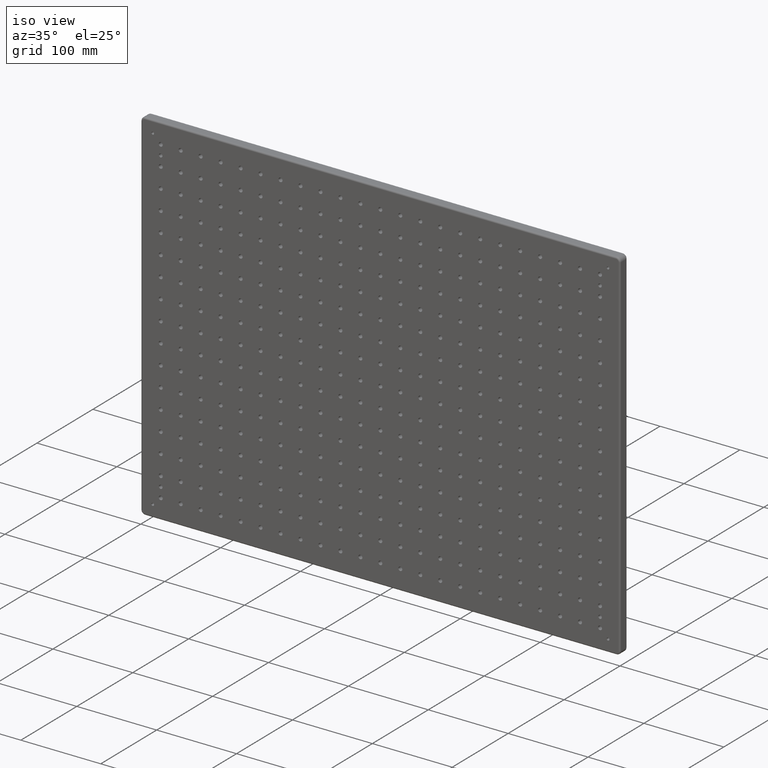
[diagram: clean part render]
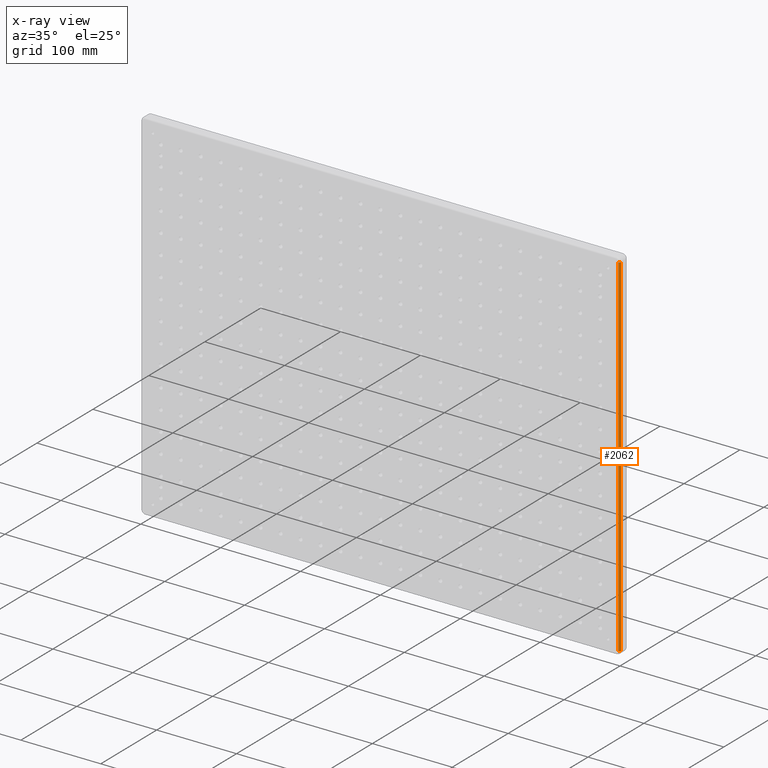
[diagram: x-ray — body ghosted, one internal face saturated and labeled with its STEP entity id]
A machine part, iso view, then the same camera in x-ray: the body is ghosted and one INTERNAL B-rep face — a face not visible from any outside direction — is saturated and labeled: STEP entity #2062.
In plain terms, the highlighted cylindrical surface (edge-blend (fillet) strip) has radius 2 mm, axis along (0, 0, -1).
Its self-contained STEP definition (entity closure, byte-faithful):
#353 = ORIENTED_EDGE ( 'NONE', *, *, #18046, .F. ) ;
#732 = CARTESIAN_POINT ( 'NONE',  ( 297.9999999999997700, 0.0000000000000000000, -220.0000000000000300 ) ) ;
#1127 = CARTESIAN_POINT ( 'NONE',  ( 299.9999999999998900, 2.000000000000003600, -220.0000000000000300 ) ) ;
#1503 = CARTESIAN_POINT ( 'NONE',  ( 297.9999999999997700, 2.000000000000000000, 220.0000000000000300 ) ) ;
#2062 = ADVANCED_FACE ( 'NONE', ( #16639 ), #11488, .T. ) ;
#2672 = VERTEX_POINT ( 'NONE', #2773 ) ;
#2773 = CARTESIAN_POINT ( 'NONE',  ( 299.9999999999997700, 2.000000000000001800, 220.0000000000000300 ) ) ;
#3157 = ORIENTED_EDGE ( 'NONE', *, *, #3928, .T. ) ;
#3873 = DIRECTION ( 'NONE',  ( -1.000000000000000000, 0.0000000000000000000, 0.0000000000000000000 ) ) ;
#3928 = EDGE_CURVE ( 'NONE', #27619, #13863, #13717, .T. ) ;
#4342 = DIRECTION ( 'NONE',  ( 1.000000000000000000, 0.0000000000000000000, 0.0000000000000000000 ) ) ;
#5879 = EDGE_CURVE ( 'NONE', #27619, #14458, #24673, .T. ) ;
#6329 = CARTESIAN_POINT ( 'NONE',  ( 297.9999999999997700, 2.000000000000000000, -220.0000000000000300 ) ) ;
#8061 = VECTOR ( 'NONE', #9452, 1000.000000000000000 ) ;
#9452 = DIRECTION ( 'NONE',  ( -0.0000000000000000000, -0.0000000000000000000, 1.000000000000000000 ) ) ;
#9532 = DIRECTION ( 'NONE',  ( 0.0000000000000000000, 0.0000000000000000000, -1.000000000000000000 ) ) ;
#10672 = AXIS2_PLACEMENT_3D ( 'NONE', #1503, #17961, #13142 ) ;
#10867 = EDGE_LOOP ( 'NONE', ( #3157, #353, #20055, #18945 ) ) ;
#11180 = DIRECTION ( 'NONE',  ( 0.0000000000000000000, 0.0000000000000000000, 1.000000000000000000 ) ) ;
#11393 = CARTESIAN_POINT ( 'NONE',  ( 297.9999999999998900, 2.000000000000000000, -220.0000000000000300 ) ) ;
#11453 = CARTESIAN_POINT ( 'NONE',  ( 297.9999999999997700, 0.0000000000000000000, -220.0000000000000300 ) ) ;
#11488 = CYLINDRICAL_SURFACE ( 'NONE', #11917, 2.000000000000001800 ) ;
#11917 = AXIS2_PLACEMENT_3D ( 'NONE', #6329, #18391, #3873 ) ;
#13142 = DIRECTION ( 'NONE',  ( 1.000000000000000000, 0.0000000000000000000, 0.0000000000000000000 ) ) ;
#13717 = CIRCLE ( 'NONE', #22263, 2.000000000000001800 ) ;
#13863 = VERTEX_POINT ( 'NONE', #1127 ) ;
#14282 = EDGE_CURVE ( 'NONE', #14458, #2672, #25742, .T. ) ;
#14458 = VERTEX_POINT ( 'NONE', #25936 ) ;
#15149 = VECTOR ( 'NONE', #9532, 1000.000000000000000 ) ;
#16639 = FACE_OUTER_BOUND ( 'NONE', #10867, .T. ) ;
#17961 = DIRECTION ( 'NONE',  ( -0.0000000000000000000, 0.0000000000000000000, 1.000000000000000000 ) ) ;
#18046 = EDGE_CURVE ( 'NONE', #2672, #13863, #21422, .T. ) ;
#18391 = DIRECTION ( 'NONE',  ( 0.0000000000000000000, 0.0000000000000000000, -1.000000000000000000 ) ) ;
#18710 = CARTESIAN_POINT ( 'NONE',  ( 299.9999999999997700, 2.000000000000000000, -220.0000000000000300 ) ) ;
#18945 = ORIENTED_EDGE ( 'NONE', *, *, #5879, .F. ) ;
#20055 = ORIENTED_EDGE ( 'NONE', *, *, #14282, .F. ) ;
#21422 = LINE ( 'NONE', #18710, #15149 ) ;
#22263 = AXIS2_PLACEMENT_3D ( 'NONE', #11393, #11180, #4342 ) ;
#24673 = LINE ( 'NONE', #11453, #8061 ) ;
#25742 = CIRCLE ( 'NONE', #10672, 2.000000000000001800 ) ;
#25936 = CARTESIAN_POINT ( 'NONE',  ( 297.9999999999998900, 0.0000000000000000000, 220.0000000000000300 ) ) ;
#27619 = VERTEX_POINT ( 'NONE', #732 ) ;